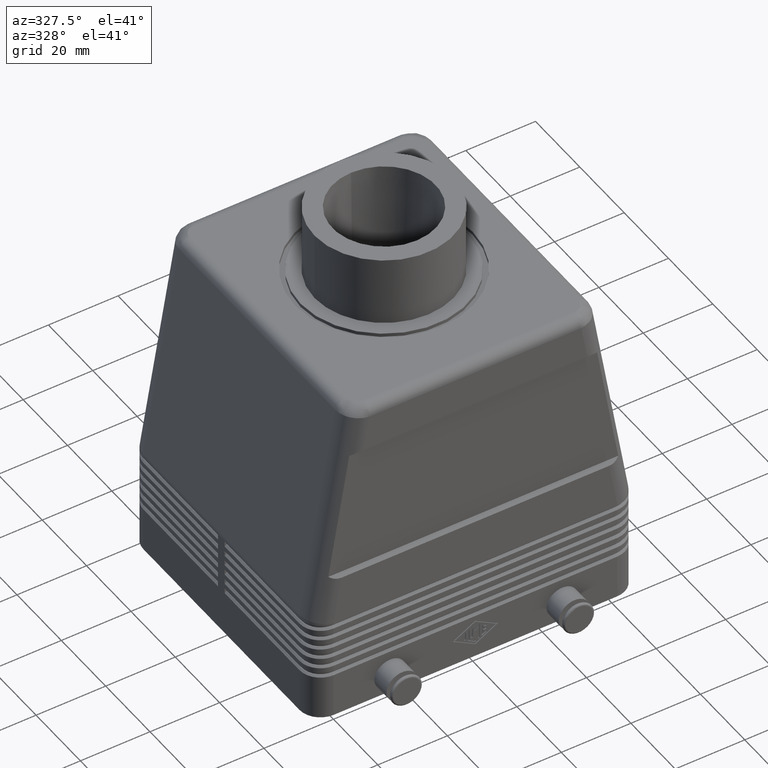
[diagram: clean part render]
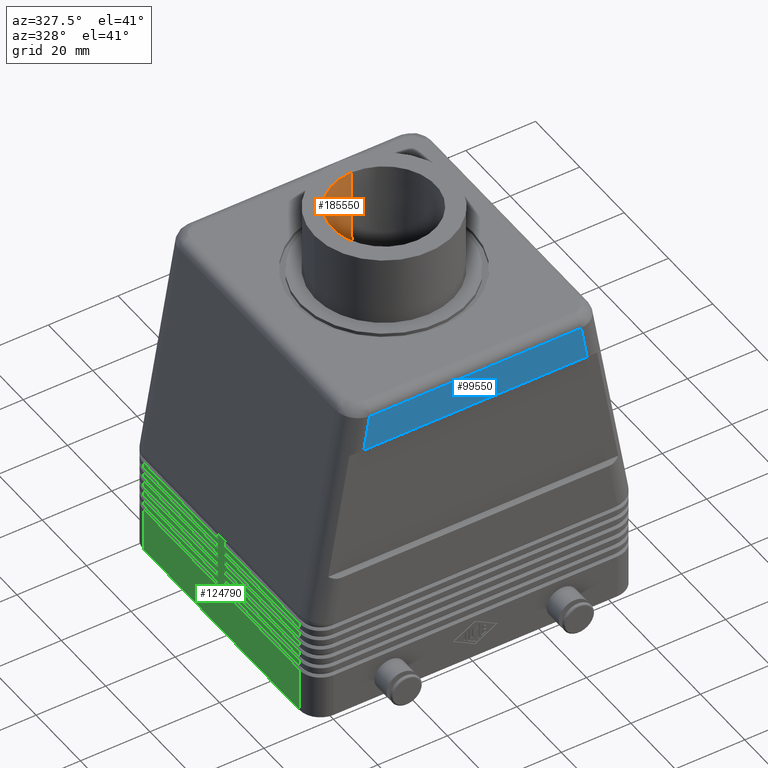
[diagram: same view with three faces highlighted in distinct colors, each labeled with its STEP entity id]
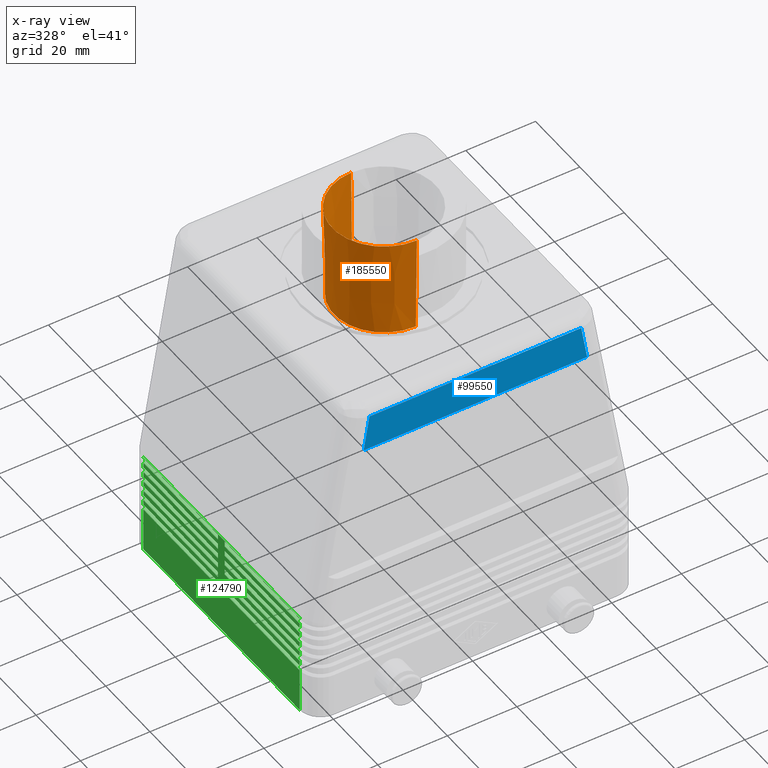
[diagram: x-ray of the same camera — body ghosted, the three highlighted faces saturated]
A machine part, auxiliary view with three faces highlighted in distinct colors.
The next image is the same camera in x-ray (body ghosted, the three faces saturated) — at least one of them is partly hidden behind the body in this view.
Their STEP definitions:

[orange] entity #185550 — the highlighted conical surface has half-angle 1 deg.
#55010=CARTESIAN_POINT('',(-3.10862446895044E-15,3.5527136788005E-15,
114.));
#55020=DIRECTION('',(0.,0.,1.));
#55030=DIRECTION('',(0.,1.,0.));
#55040=AXIS2_PLACEMENT_3D('',#55010,#55020,#55030);
#55050=CIRCLE('',#55040,14.85);
#55060=CARTESIAN_POINT('',(-3.10862446895044E-15,14.85,114.));
#55070=VERTEX_POINT('',#55060);
#55080=CARTESIAN_POINT('',(-4.92722496568426E-15,-14.85,114.));
#55090=VERTEX_POINT('',#55080);
#55100=EDGE_CURVE('',#55070,#55090,#55050,.T.);
#56600=CARTESIAN_POINT('',(-3.10862446895044E-15,3.5527136788005E-15,86.
));
#56610=DIRECTION('',(0.,0.,1.));
#56620=DIRECTION('',(0.,1.,0.));
#56630=AXIS2_PLACEMENT_3D('',#56600,#56610,#56620);
#56640=CIRCLE('',#56630,14.3612581820099);
#56650=CARTESIAN_POINT('',(-3.10862446895044E-15,14.3612581820099,86.));
#56660=VERTEX_POINT('',#56650);
#56670=CARTESIAN_POINT('',(-4.86737135538316E-15,-14.3612581820099,86.))
;
#56680=VERTEX_POINT('',#56670);
#56690=EDGE_CURVE('',#56660,#56680,#56640,.T.);
#183950=CARTESIAN_POINT('',(-3.10862446895044E-15,14.85,114.));
#183960=DIRECTION('',(0.,0.0174524064372835,0.999847695156391));
#183970=VECTOR('',#183960,850.88552420347);
#183980=LINE('',#183950,#183970);
#183990=EDGE_CURVE('',#56660,#55070,#183980,.T.);
#184020=CARTESIAN_POINT('',(-4.92722496568426E-15,-14.85,114.));
#184030=DIRECTION('',(-2.13730336808379E-18,-0.0174524064372835,
0.999847695156391));
#184040=VECTOR('',#184030,850.88552420347);
#184050=LINE('',#184020,#184040);
#184060=EDGE_CURVE('',#56680,#55090,#184050,.T.);
#185440=CARTESIAN_POINT('',(-3.10862446895044E-15,3.5527136788005E-15,
114.));
#185450=DIRECTION('',(0.,0.,1.));
#185460=DIRECTION('',(0.,1.,0.));
#185470=AXIS2_PLACEMENT_3D('',#185440,#185450,#185460);
#185480=CONICAL_SURFACE('',#185470,14.85,0.0174532925199433);
#185490=ORIENTED_EDGE('',*,*,#56690,.F.);
#185500=ORIENTED_EDGE('',*,*,#184060,.F.);
#185510=ORIENTED_EDGE('',*,*,#55100,.T.);
#185520=ORIENTED_EDGE('',*,*,#183990,.T.);
#185530=EDGE_LOOP('',(#185520,#185510,#185500,#185490));
#185540=FACE_OUTER_BOUND('',#185530,.T.);
#185550=ADVANCED_FACE('',(#185540),#185480,.F.);

[blue] entity #99550 — the highlighted planar face has unit normal (0, -1, 0).
#3790=CARTESIAN_POINT('',(30.4198544721832,-41.25,91.));
#3800=VERTEX_POINT('',#3790);
#7030=CARTESIAN_POINT('',(32.0995419721832,-41.25,81.));
#7040=VERTEX_POINT('',#7030);
#7070=CARTESIAN_POINT('',(30.4198544721832,-41.25,91.));
#7080=DIRECTION('',(0.165648245084731,0.,-0.986184900969564));
#7090=VECTOR('',#7080,1.);
#7100=LINE('',#7070,#7090);
#7110=EDGE_CURVE('',#3800,#7040,#7100,.T.);
#8990=CARTESIAN_POINT('',(-30.4198544721832,-41.25,91.));
#9000=DIRECTION('',(1.,0.,0.));
#9010=VECTOR('',#9000,1.);
#9020=LINE('',#8990,#9010);
#9030=CARTESIAN_POINT('',(-30.4198544721832,-41.25,91.));
#9040=VERTEX_POINT('',#9030);
#9050=EDGE_CURVE('',#9040,#3800,#9020,.T.);
#41830=CARTESIAN_POINT('',(-32.0995419721832,-41.25,81.));
#41840=DIRECTION('',(0.165648245084731,0.,0.986184900969564));
#41850=VECTOR('',#41840,1.);
#41860=LINE('',#41830,#41850);
#41870=CARTESIAN_POINT('',(-32.0995419721832,-41.25,81.));
#41880=VERTEX_POINT('',#41870);
#41890=EDGE_CURVE('',#41880,#9040,#41860,.T.);
#98980=CARTESIAN_POINT('',(0.,-41.25,81.));
#98990=DIRECTION('',(1.,0.,-0.));
#99000=VECTOR('',#98990,1.);
#99010=LINE('',#98980,#99000);
#99020=EDGE_CURVE('',#41880,#7040,#99010,.T.);
#99440=CARTESIAN_POINT('',(-38.5194503666198,-41.25,92.));
#99450=DIRECTION('',(0.,-1.,0.));
#99460=DIRECTION('',(-1.,-0.,0.));
#99470=AXIS2_PLACEMENT_3D('',#99440,#99450,#99460);
#99480=PLANE('',#99470);
#99490=ORIENTED_EDGE('',*,*,#41890,.F.);
#99500=ORIENTED_EDGE('',*,*,#9050,.F.);
#99510=ORIENTED_EDGE('',*,*,#7110,.F.);
#99520=ORIENTED_EDGE('',*,*,#99020,.T.);
#99530=EDGE_LOOP('',(#99520,#99510,#99500,#99490));
#99540=FACE_OUTER_BOUND('',#99530,.T.);
#99550=ADVANCED_FACE('',(#99540),#99480,.T.);

[green] entity #124790 — the highlighted planar face has unit normal (-1, 0, 0).
#5220=CARTESIAN_POINT('',(-46.75,35.25,29.4995987181137));
#5230=DIRECTION('',(0.,-1.,0.));
#5240=VECTOR('',#5230,1.);
#5250=LINE('',#5220,#5240);
#5260=CARTESIAN_POINT('',(-46.75,35.25,29.4995987181137));
#5270=VERTEX_POINT('',#5260);
#5280=CARTESIAN_POINT('',(-46.75,-35.25,29.4995987181137));
#5290=VERTEX_POINT('',#5280);
#5300=EDGE_CURVE('',#5270,#5290,#5250,.T.);
#9820=CARTESIAN_POINT('',(-46.75,-35.25,14.25));
#9830=VERTEX_POINT('',#9820);
#10270=CARTESIAN_POINT('',(-46.75,-35.25,12.75));
#10280=DIRECTION('',(0.,0.,-1.));
#10290=VECTOR('',#10280,1.);
#10300=LINE('',#10270,#10290);
#10310=CARTESIAN_POINT('',(-46.75,-35.25,12.75));
#10320=VERTEX_POINT('',#10310);
#10330=CARTESIAN_POINT('',(-46.75,-35.25,0.));
#10340=VERTEX_POINT('',#10330);
#10350=EDGE_CURVE('',#10320,#10340,#10300,.T.);
#13010=CARTESIAN_POINT('',(-46.75,-35.25,17.25));
#13020=VERTEX_POINT('',#13010);
#13460=CARTESIAN_POINT('',(-46.75,-35.25,15.75));
#13470=DIRECTION('',(0.,0.,-1.));
#13480=VECTOR('',#13470,1.);
#13490=LINE('',#13460,#13480);
#13500=CARTESIAN_POINT('',(-46.75,-35.25,15.75));
#13510=VERTEX_POINT('',#13500);
#13520=EDGE_CURVE('',#13510,#9830,#13490,.T.);
#15550=CARTESIAN_POINT('',(-46.75,-35.25,20.25));
#15560=VERTEX_POINT('',#15550);
#16000=CARTESIAN_POINT('',(-46.75,-35.25,18.75));
#16010=DIRECTION('',(0.,0.,-1.));
#16020=VECTOR('',#16010,1.);
#16030=LINE('',#16000,#16020);
#16040=CARTESIAN_POINT('',(-46.75,-35.25,18.75));
#16050=VERTEX_POINT('',#16040);
#16060=EDGE_CURVE('',#16050,#13020,#16030,.T.);
#18090=CARTESIAN_POINT('',(-46.75,-35.25,23.25));
#18100=VERTEX_POINT('',#18090);
#18540=CARTESIAN_POINT('',(-46.75,-35.25,21.75));
#18550=DIRECTION('',(0.,0.,-1.));
#18560=VECTOR('',#18550,1.);
#18570=LINE('',#18540,#18560);
#18580=CARTESIAN_POINT('',(-46.75,-35.25,21.75));
#18590=VERTEX_POINT('',#18580);
#18600=EDGE_CURVE('',#18590,#15560,#18570,.T.);
#20630=CARTESIAN_POINT('',(-46.75,-35.25,26.25));
#20640=VERTEX_POINT('',#20630);
#21080=CARTESIAN_POINT('',(-46.75,-35.25,24.75));
#21090=DIRECTION('',(0.,0.,-1.));
#21100=VECTOR('',#21090,1.);
#21110=LINE('',#21080,#21100);
#21120=CARTESIAN_POINT('',(-46.75,-35.25,24.75));
#21130=VERTEX_POINT('',#21120);
#21140=EDGE_CURVE('',#21130,#18100,#21110,.T.);
#22640=CARTESIAN_POINT('',(-46.75,-35.25,29.4995987181137));
#22650=DIRECTION('',(0.,0.,-1.));
#22660=VECTOR('',#22650,1.);
#22670=LINE('',#22640,#22660);
#22680=CARTESIAN_POINT('',(-46.75,-35.25,29.25));
#22690=VERTEX_POINT('',#22680);
#22700=EDGE_CURVE('',#5290,#22690,#22670,.T.);
#23890=CARTESIAN_POINT('',(-46.75,-35.25,27.75));
#23900=DIRECTION('',(0.,0.,-1.));
#23910=VECTOR('',#23900,1.);
#23920=LINE('',#23890,#23910);
#23930=CARTESIAN_POINT('',(-46.75,-35.25,27.75));
#23940=VERTEX_POINT('',#23930);
#23950=EDGE_CURVE('',#23940,#20640,#23920,.T.);
#25600=CARTESIAN_POINT('',(-46.75,35.25,14.25));
#25610=VERTEX_POINT('',#25600);
#26920=CARTESIAN_POINT('',(-46.75,35.25,0.));
#26930=DIRECTION('',(0.,0.,1.));
#26940=VECTOR('',#26930,1.);
#26950=LINE('',#26920,#26940);
#26960=CARTESIAN_POINT('',(-46.75,35.25,0.));
#26970=VERTEX_POINT('',#26960);
#26980=CARTESIAN_POINT('',(-46.75,35.25,12.75));
#26990=VERTEX_POINT('',#26980);
#27000=EDGE_CURVE('',#26970,#26990,#26950,.T.);
#31010=CARTESIAN_POINT('',(-46.75,35.25,26.25));
#31020=DIRECTION('',(0.,0.,1.));
#31030=VECTOR('',#31020,1.);
#31040=LINE('',#31010,#31030);
#31050=CARTESIAN_POINT('',(-46.75,35.25,26.25));
#31060=VERTEX_POINT('',#31050);
#31070=CARTESIAN_POINT('',(-46.75,35.25,27.75));
#31080=VERTEX_POINT('',#31070);
#31090=EDGE_CURVE('',#31060,#31080,#31040,.T.);
#31500=CARTESIAN_POINT('',(-46.75,35.25,29.25));
#31510=DIRECTION('',(0.,0.,1.));
#31520=VECTOR('',#31510,1.);
#31530=LINE('',#31500,#31520);
#31540=CARTESIAN_POINT('',(-46.75,35.25,29.25));
#31550=VERTEX_POINT('',#31540);
#31560=EDGE_CURVE('',#31550,#5270,#31530,.T.);
#31950=CARTESIAN_POINT('',(-46.75,35.25,23.25));
#31960=DIRECTION('',(0.,0.,1.));
#31970=VECTOR('',#31960,1.);
#31980=LINE('',#31950,#31970);
#31990=CARTESIAN_POINT('',(-46.75,35.25,23.25));
#32000=VERTEX_POINT('',#31990);
#32010=CARTESIAN_POINT('',(-46.75,35.25,24.75));
#32020=VERTEX_POINT('',#32010);
#32030=EDGE_CURVE('',#32000,#32020,#31980,.T.);
#32440=CARTESIAN_POINT('',(-46.75,35.25,20.25));
#32450=DIRECTION('',(0.,0.,1.));
#32460=VECTOR('',#32450,1.);
#32470=LINE('',#32440,#32460);
#32480=CARTESIAN_POINT('',(-46.75,35.25,20.25));
#32490=VERTEX_POINT('',#32480);
#32500=CARTESIAN_POINT('',(-46.75,35.25,21.75));
#32510=VERTEX_POINT('',#32500);
#32520=EDGE_CURVE('',#32490,#32510,#32470,.T.);
#32930=CARTESIAN_POINT('',(-46.75,35.25,17.25));
#32940=DIRECTION('',(0.,0.,1.));
#32950=VECTOR('',#32940,1.);
#32960=LINE('',#32930,#32950);
#32970=CARTESIAN_POINT('',(-46.75,35.25,17.25));
#32980=VERTEX_POINT('',#32970);
#32990=CARTESIAN_POINT('',(-46.75,35.25,18.75));
#33000=VERTEX_POINT('',#32990);
#33010=EDGE_CURVE('',#32980,#33000,#32960,.T.);
#34200=CARTESIAN_POINT('',(-46.75,35.25,14.25));
#34210=DIRECTION('',(0.,0.,1.));
#34220=VECTOR('',#34210,1.);
#34230=LINE('',#34200,#34220);
#34240=CARTESIAN_POINT('',(-46.75,35.25,15.75));
#34250=VERTEX_POINT('',#34240);
#34260=EDGE_CURVE('',#25610,#34250,#34230,.T.);
#53580=CARTESIAN_POINT('',(-46.75,-1.5,15.75));
#53590=VERTEX_POINT('',#53580);
#53620=CARTESIAN_POINT('',(-46.75,-1.5,0.));
#53630=DIRECTION('',(-0.,-0.,-1.));
#53640=VECTOR('',#53630,1.);
#53650=LINE('',#53620,#53640);
#53660=CARTESIAN_POINT('',(-46.75,-1.5,17.25));
#53670=VERTEX_POINT('',#53660);
#53680=EDGE_CURVE('',#53670,#53590,#53650,.T.);
#57370=CARTESIAN_POINT('',(-46.75,0.,12.75));
#57380=DIRECTION('',(-0.,-1.,0.));
#57390=VECTOR('',#57380,1.);
#57400=LINE('',#57370,#57390);
#57410=CARTESIAN_POINT('',(-46.75,-1.5,12.75));
#57420=VERTEX_POINT('',#57410);
#57430=EDGE_CURVE('',#57420,#10320,#57400,.T.);
#83990=CARTESIAN_POINT('',(-46.75,0.,-0.));
#84000=DIRECTION('',(0.,1.,0.));
#84010=VECTOR('',#84000,1.);
#84020=LINE('',#83990,#84010);
#84030=EDGE_CURVE('',#10340,#26970,#84020,.T.);
#99800=CARTESIAN_POINT('',(-46.75,1.5,27.75));
#99810=VERTEX_POINT('',#99800);
#99840=CARTESIAN_POINT('',(-46.75,0.,27.75));
#99850=DIRECTION('',(-0.,-1.,0.));
#99860=VECTOR('',#99850,1.);
#99870=LINE('',#99840,#99860);
#99880=EDGE_CURVE('',#31080,#99810,#99870,.T.);
#103860=CARTESIAN_POINT('',(-46.75,0.,29.25));
#103870=DIRECTION('',(0.,1.,0.));
#103880=VECTOR('',#103870,1.);
#103890=LINE('',#103860,#103880);
#103900=CARTESIAN_POINT('',(-46.75,1.5,29.25));
#103910=VERTEX_POINT('',#103900);
#103920=EDGE_CURVE('',#103910,#31550,#103890,.T.);
#105030=CARTESIAN_POINT('',(-46.75,1.5,24.75));
#105040=VERTEX_POINT('',#105030);
#105070=CARTESIAN_POINT('',(-46.75,0.,24.75));
#105080=DIRECTION('',(-0.,-1.,0.));
#105090=VECTOR('',#105080,1.);
#105100=LINE('',#105070,#105090);
#105110=EDGE_CURVE('',#32020,#105040,#105100,.T.);
#109190=CARTESIAN_POINT('',(-46.75,0.,26.25));
#109200=DIRECTION('',(0.,1.,0.));
#109210=VECTOR('',#109200,1.);
#109220=LINE('',#109190,#109210);
#109230=CARTESIAN_POINT('',(-46.75,1.5,26.25));
#109240=VERTEX_POINT('',#109230);
#109250=EDGE_CURVE('',#109240,#31060,#109220,.T.);
#110360=CARTESIAN_POINT('',(-46.75,1.5,21.75));
#110370=VERTEX_POINT('',#110360);
#110400=CARTESIAN_POINT('',(-46.75,0.,21.75));
#110410=DIRECTION('',(-0.,-1.,0.));
#110420=VECTOR('',#110410,1.);
#110430=LINE('',#110400,#110420);
#110440=EDGE_CURVE('',#32510,#110370,#110430,.T.);
#114090=CARTESIAN_POINT('',(-46.75,0.,23.25));
#114100=DIRECTION('',(0.,1.,0.));
#114110=VECTOR('',#114100,1.);
#114120=LINE('',#114090,#114110);
#114130=CARTESIAN_POINT('',(-46.75,1.5,23.25));
#114140=VERTEX_POINT('',#114130);
#114150=EDGE_CURVE('',#114140,#32000,#114120,.T.);
#115260=CARTESIAN_POINT('',(-46.75,1.5,18.75));
#115270=VERTEX_POINT('',#115260);
#115300=CARTESIAN_POINT('',(-46.75,0.,18.75));
#115310=DIRECTION('',(-0.,-1.,0.));
#115320=VECTOR('',#115310,1.);
#115330=LINE('',#115300,#115320);
#115340=EDGE_CURVE('',#33000,#115270,#115330,.T.);
#119010=CARTESIAN_POINT('',(-46.75,0.,20.25));
#119020=DIRECTION('',(0.,1.,0.));
#119030=VECTOR('',#119020,1.);
#119040=LINE('',#119010,#119030);
#119050=CARTESIAN_POINT('',(-46.75,1.5,20.25));
#119060=VERTEX_POINT('',#119050);
#119070=EDGE_CURVE('',#119060,#32490,#119040,.T.);
#120390=CARTESIAN_POINT('',(-46.75,0.,15.75));
#120400=DIRECTION('',(-0.,-1.,0.));
#120410=VECTOR('',#120400,1.);
#120420=LINE('',#120390,#120410);
#120430=CARTESIAN_POINT('',(-46.75,1.5,15.75));
#120440=VERTEX_POINT('',#120430);
#120450=EDGE_CURVE('',#34250,#120440,#120420,.T.);
#122710=CARTESIAN_POINT('',(-46.75,-42.3,-2.94995987181137));
#122720=DIRECTION('',(-1.,0.,0.));
#122730=DIRECTION('',(0.,1.,0.));
#122740=AXIS2_PLACEMENT_3D('',#122710,#122720,#122730);
#122750=PLANE('',#122740);
#122760=CARTESIAN_POINT('',(-46.75,1.5,0.));
#122770=DIRECTION('',(-0.,-0.,1.));
#122780=VECTOR('',#122770,1.);
#122790=LINE('',#122760,#122780);
#122800=EDGE_CURVE('',#99810,#103910,#122790,.T.);
#122810=ORIENTED_EDGE('',*,*,#122800,.F.);
#122820=ORIENTED_EDGE('',*,*,#103920,.F.);
#122830=ORIENTED_EDGE('',*,*,#31560,.F.);
#122840=ORIENTED_EDGE('',*,*,#5300,.F.);
#122850=ORIENTED_EDGE('',*,*,#22700,.F.);
#122860=CARTESIAN_POINT('',(-46.75,0.,29.25));
#122870=DIRECTION('',(-0.,1.,0.));
#122880=VECTOR('',#122870,1.);
#122890=LINE('',#122860,#122880);
#122900=CARTESIAN_POINT('',(-46.75,-1.5,29.25));
#122910=VERTEX_POINT('',#122900);
#122920=EDGE_CURVE('',#22690,#122910,#122890,.T.);
#122930=ORIENTED_EDGE('',*,*,#122920,.F.);
#122940=CARTESIAN_POINT('',(-46.75,-1.5,0.));
#122950=DIRECTION('',(-0.,-0.,-1.));
#122960=VECTOR('',#122950,1.);
#122970=LINE('',#122940,#122960);
#122980=CARTESIAN_POINT('',(-46.75,-1.5,27.75));
#122990=VERTEX_POINT('',#122980);
#123000=EDGE_CURVE('',#122910,#122990,#122970,.T.);
#123010=ORIENTED_EDGE('',*,*,#123000,.F.);
#123020=CARTESIAN_POINT('',(-46.75,0.,27.75));
#123030=DIRECTION('',(-0.,-1.,0.));
#123040=VECTOR('',#123030,1.);
#123050=LINE('',#123020,#123040);
#123060=EDGE_CURVE('',#122990,#23940,#123050,.T.);
#123070=ORIENTED_EDGE('',*,*,#123060,.F.);
#123080=ORIENTED_EDGE('',*,*,#23950,.F.);
#123090=CARTESIAN_POINT('',(-46.75,0.,26.25));
#123100=DIRECTION('',(-0.,1.,0.));
#123110=VECTOR('',#123100,1.);
#123120=LINE('',#123090,#123110);
#123130=CARTESIAN_POINT('',(-46.75,-1.5,26.25));
#123140=VERTEX_POINT('',#123130);
#123150=EDGE_CURVE('',#20640,#123140,#123120,.T.);
#123160=ORIENTED_EDGE('',*,*,#123150,.F.);
#123170=CARTESIAN_POINT('',(-46.75,-1.5,0.));
#123180=DIRECTION('',(-0.,-0.,-1.));
#123190=VECTOR('',#123180,1.);
#123200=LINE('',#123170,#123190);
#123210=CARTESIAN_POINT('',(-46.75,-1.5,24.75));
#123220=VERTEX_POINT('',#123210);
#123230=EDGE_CURVE('',#123140,#123220,#123200,.T.);
#123240=ORIENTED_EDGE('',*,*,#123230,.F.);
#123250=CARTESIAN_POINT('',(-46.75,0.,24.75));
#123260=DIRECTION('',(-0.,-1.,0.));
#123270=VECTOR('',#123260,1.);
#123280=LINE('',#123250,#123270);
#123290=EDGE_CURVE('',#123220,#21130,#123280,.T.);
#123300=ORIENTED_EDGE('',*,*,#123290,.F.);
#123310=ORIENTED_EDGE('',*,*,#21140,.F.);
#123320=CARTESIAN_POINT('',(-46.75,0.,23.25));
#123330=DIRECTION('',(-0.,1.,0.));
#123340=VECTOR('',#123330,1.);
#123350=LINE('',#123320,#123340);
#123360=CARTESIAN_POINT('',(-46.75,-1.5,23.25));
#123370=VERTEX_POINT('',#123360);
#123380=EDGE_CURVE('',#18100,#123370,#123350,.T.);
#123390=ORIENTED_EDGE('',*,*,#123380,.F.);
#123400=CARTESIAN_POINT('',(-46.75,-1.5,0.));
#123410=DIRECTION('',(-0.,-0.,-1.));
#123420=VECTOR('',#123410,1.);
#123430=LINE('',#123400,#123420);
#123440=CARTESIAN_POINT('',(-46.75,-1.5,21.75));
#123450=VERTEX_POINT('',#123440);
#123460=EDGE_CURVE('',#123370,#123450,#123430,.T.);
#123470=ORIENTED_EDGE('',*,*,#123460,.F.);
#123480=CARTESIAN_POINT('',(-46.75,0.,21.75));
#123490=DIRECTION('',(-0.,-1.,0.));
#123500=VECTOR('',#123490,1.);
#123510=LINE('',#123480,#123500);
#123520=EDGE_CURVE('',#123450,#18590,#123510,.T.);
#123530=ORIENTED_EDGE('',*,*,#123520,.F.);
#123540=ORIENTED_EDGE('',*,*,#18600,.F.);
#123550=CARTESIAN_POINT('',(-46.75,0.,20.25));
#123560=DIRECTION('',(-0.,1.,0.));
#123570=VECTOR('',#123560,1.);
#123580=LINE('',#123550,#123570);
#123590=CARTESIAN_POINT('',(-46.75,-1.5,20.25));
#123600=VERTEX_POINT('',#123590);
#123610=EDGE_CURVE('',#15560,#123600,#123580,.T.);
#123620=ORIENTED_EDGE('',*,*,#123610,.F.);
#123630=CARTESIAN_POINT('',(-46.75,-1.5,0.));
#123640=DIRECTION('',(-0.,-0.,-1.));
#123650=VECTOR('',#123640,1.);
#123660=LINE('',#123630,#123650);
#123670=CARTESIAN_POINT('',(-46.75,-1.5,18.75));
#123680=VERTEX_POINT('',#123670);
#123690=EDGE_CURVE('',#123600,#123680,#123660,.T.);
#123700=ORIENTED_EDGE('',*,*,#123690,.F.);
#123710=CARTESIAN_POINT('',(-46.75,0.,18.75));
#123720=DIRECTION('',(-0.,-1.,0.));
#123730=VECTOR('',#123720,1.);
#123740=LINE('',#123710,#123730);
#123750=EDGE_CURVE('',#123680,#16050,#123740,.T.);
#123760=ORIENTED_EDGE('',*,*,#123750,.F.);
#123770=ORIENTED_EDGE('',*,*,#16060,.F.);
#123780=CARTESIAN_POINT('',(-46.75,0.,17.25));
#123790=DIRECTION('',(-0.,1.,0.));
#123800=VECTOR('',#123790,1.);
#123810=LINE('',#123780,#123800);
#123820=EDGE_CURVE('',#13020,#53670,#123810,.T.);
#123830=ORIENTED_EDGE('',*,*,#123820,.F.);
#123840=ORIENTED_EDGE('',*,*,#53680,.F.);
#123850=CARTESIAN_POINT('',(-46.75,0.,15.75));
#123860=DIRECTION('',(-0.,-1.,0.));
#123870=VECTOR('',#123860,1.);
#123880=LINE('',#123850,#123870);
#123890=EDGE_CURVE('',#53590,#13510,#123880,.T.);
#123900=ORIENTED_EDGE('',*,*,#123890,.F.);
#123910=ORIENTED_EDGE('',*,*,#13520,.F.);
#123920=CARTESIAN_POINT('',(-46.75,0.,14.25));
#123930=DIRECTION('',(-0.,1.,0.));
#123940=VECTOR('',#123930,1.);
#123950=LINE('',#123920,#123940);
#123960=CARTESIAN_POINT('',(-46.75,-1.5,14.25));
#123970=VERTEX_POINT('',#123960);
#123980=EDGE_CURVE('',#9830,#123970,#123950,.T.);
#123990=ORIENTED_EDGE('',*,*,#123980,.F.);
#124000=CARTESIAN_POINT('',(-46.75,-1.5,0.));
#124010=DIRECTION('',(-0.,-0.,-1.));
#124020=VECTOR('',#124010,1.);
#124030=LINE('',#124000,#124020);
#124040=EDGE_CURVE('',#123970,#57420,#124030,.T.);
#124050=ORIENTED_EDGE('',*,*,#124040,.F.);
#124060=ORIENTED_EDGE('',*,*,#57430,.F.);
#124070=ORIENTED_EDGE('',*,*,#10350,.F.);
#124080=ORIENTED_EDGE('',*,*,#84030,.F.);
#124090=ORIENTED_EDGE('',*,*,#27000,.F.);
#124100=CARTESIAN_POINT('',(-46.75,0.,12.75));
#124110=DIRECTION('',(-0.,-1.,0.));
#124120=VECTOR('',#124110,1.);
#124130=LINE('',#124100,#124120);
#124140=CARTESIAN_POINT('',(-46.75,1.5,12.75));
#124150=VERTEX_POINT('',#124140);
#124160=EDGE_CURVE('',#26990,#124150,#124130,.T.);
#124170=ORIENTED_EDGE('',*,*,#124160,.F.);
#124180=CARTESIAN_POINT('',(-46.75,1.5,0.));
#124190=DIRECTION('',(-0.,-0.,1.));
#124200=VECTOR('',#124190,1.);
#124210=LINE('',#124180,#124200);
#124220=CARTESIAN_POINT('',(-46.75,1.5,14.25));
#124230=VERTEX_POINT('',#124220);
#124240=EDGE_CURVE('',#124150,#124230,#124210,.T.);
#124250=ORIENTED_EDGE('',*,*,#124240,.F.);
#124260=CARTESIAN_POINT('',(-46.75,0.,14.25));
#124270=DIRECTION('',(-0.,1.,0.));
#124280=VECTOR('',#124270,1.);
#124290=LINE('',#124260,#124280);
#124300=EDGE_CURVE('',#124230,#25610,#124290,.T.);
#124310=ORIENTED_EDGE('',*,*,#124300,.F.);
#124320=ORIENTED_EDGE('',*,*,#34260,.F.);
#124330=ORIENTED_EDGE('',*,*,#120450,.F.);
#124340=CARTESIAN_POINT('',(-46.75,1.5,0.));
#124350=DIRECTION('',(-0.,-0.,1.));
#124360=VECTOR('',#124350,1.);
#124370=LINE('',#124340,#124360);
#124380=CARTESIAN_POINT('',(-46.75,1.5,17.25));
#124390=VERTEX_POINT('',#124380);
#124400=EDGE_CURVE('',#120440,#124390,#124370,.T.);
#124410=ORIENTED_EDGE('',*,*,#124400,.F.);
#124420=CARTESIAN_POINT('',(-46.75,0.,17.25));
#124430=DIRECTION('',(-0.,1.,0.));
#124440=VECTOR('',#124430,1.);
#124450=LINE('',#124420,#124440);
#124460=EDGE_CURVE('',#124390,#32980,#124450,.T.);
#124470=ORIENTED_EDGE('',*,*,#124460,.F.);
#124480=ORIENTED_EDGE('',*,*,#33010,.F.);
#124490=ORIENTED_EDGE('',*,*,#115340,.F.);
#124500=CARTESIAN_POINT('',(-46.75,1.5,0.));
#124510=DIRECTION('',(-0.,-0.,1.));
#124520=VECTOR('',#124510,1.);
#124530=LINE('',#124500,#124520);
#124540=EDGE_CURVE('',#115270,#119060,#124530,.T.);
#124550=ORIENTED_EDGE('',*,*,#124540,.F.);
#124560=ORIENTED_EDGE('',*,*,#119070,.F.);
#124570=ORIENTED_EDGE('',*,*,#32520,.F.);
#124580=ORIENTED_EDGE('',*,*,#110440,.F.);
#124590=CARTESIAN_POINT('',(-46.75,1.5,0.));
#124600=DIRECTION('',(-0.,-0.,1.));
#124610=VECTOR('',#124600,1.);
#124620=LINE('',#124590,#124610);
#124630=EDGE_CURVE('',#110370,#114140,#124620,.T.);
#124640=ORIENTED_EDGE('',*,*,#124630,.F.);
#124650=ORIENTED_EDGE('',*,*,#114150,.F.);
#124660=ORIENTED_EDGE('',*,*,#32030,.F.);
#124670=ORIENTED_EDGE('',*,*,#105110,.F.);
#124680=CARTESIAN_POINT('',(-46.75,1.5,0.));
#124690=DIRECTION('',(-0.,-0.,1.));
#124700=VECTOR('',#124690,1.);
#124710=LINE('',#124680,#124700);
#124720=EDGE_CURVE('',#105040,#109240,#124710,.T.);
#124730=ORIENTED_EDGE('',*,*,#124720,.F.);
#124740=ORIENTED_EDGE('',*,*,#109250,.F.);
#124750=ORIENTED_EDGE('',*,*,#31090,.F.);
#124760=ORIENTED_EDGE('',*,*,#99880,.F.);
#124770=EDGE_LOOP('',(#124760,#124750,#124740,#124730,#124670,#124660,
#124650,#124640,#124580,#124570,#124560,#124550,#124490,#124480,#124470,
#124410,#124330,#124320,#124310,#124250,#124170,#124090,#124080,#124070,
#124060,#124050,#123990,#123910,#123900,#123840,#123830,#123770,#123760,
#123700,#123620,#123540,#123530,#123470,#123390,#123310,#123300,#123240,
#123160,#123080,#123070,#123010,#122930,#122850,#122840,#122830,#122820,
#122810));
#124780=FACE_OUTER_BOUND('',#124770,.T.);
#124790=ADVANCED_FACE('',(#124780),#122750,.T.);